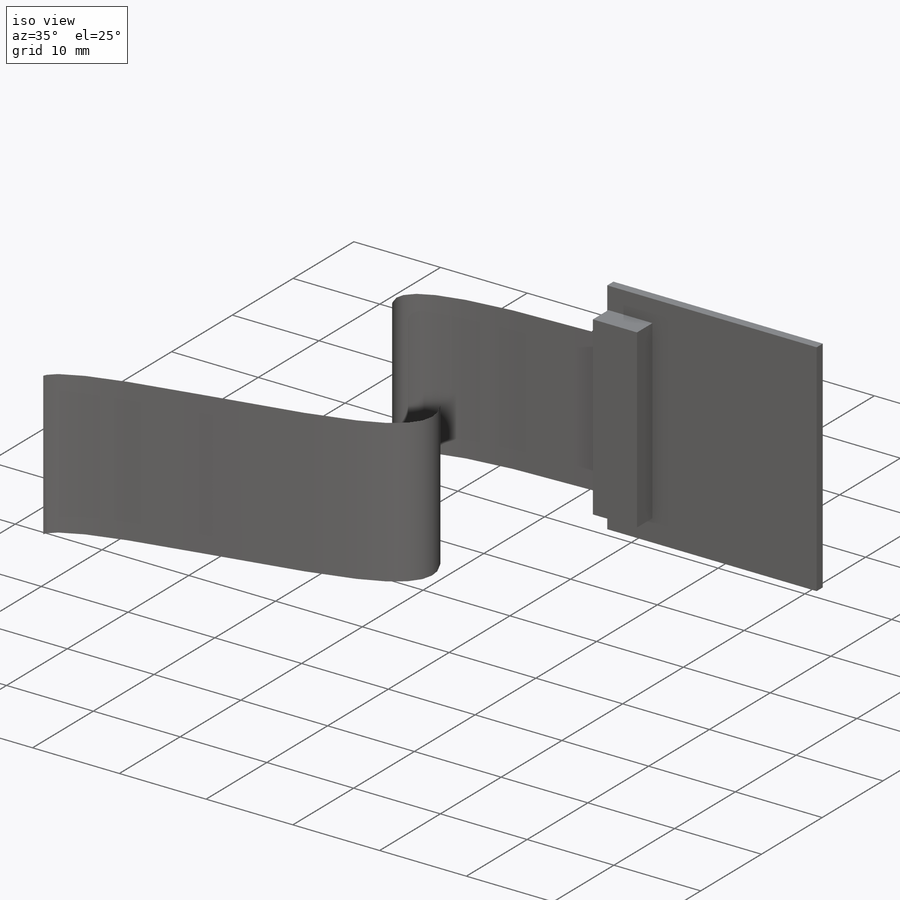
[diagram: iso view]
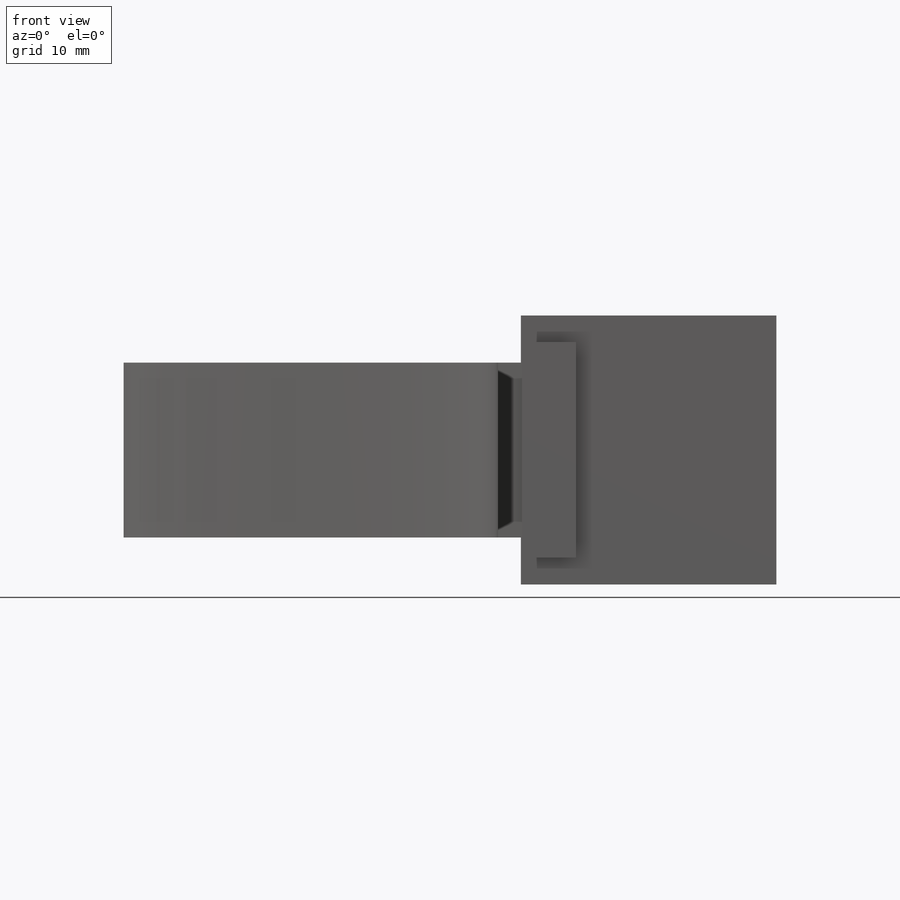
[diagram: front view]
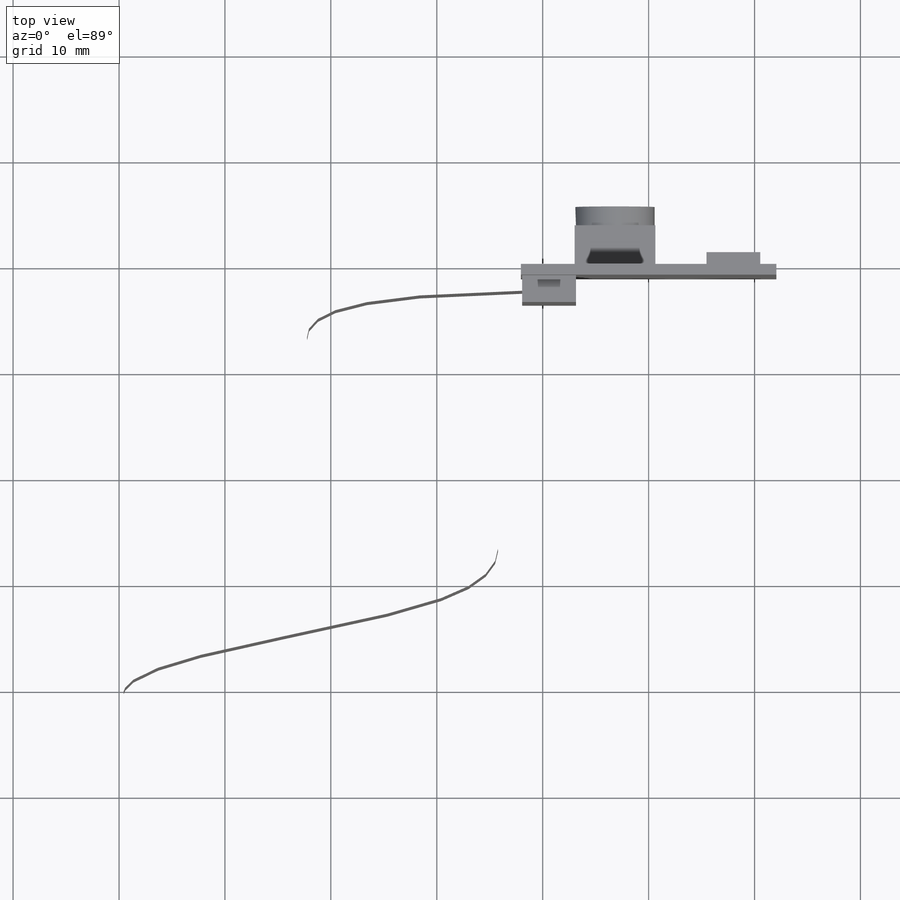
[diagram: top view]
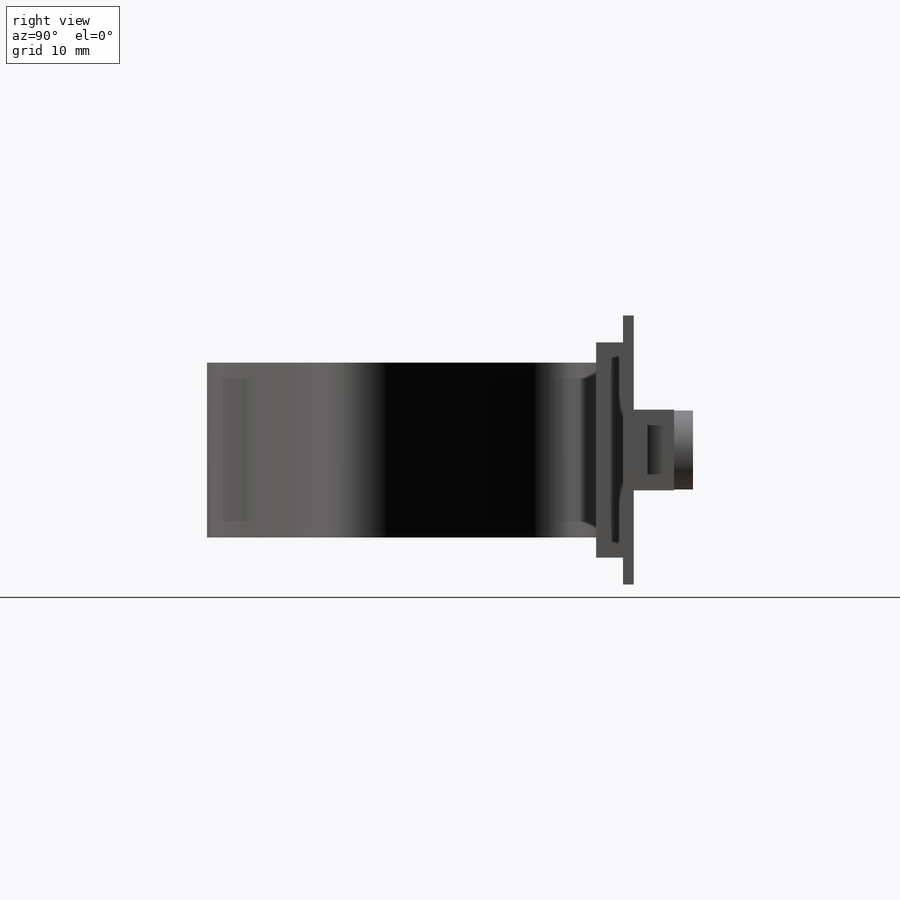
[diagram: right view]
SOLIDWORKS PART (.sldprt)
format: sldprt  version: not decoded by parser v0  size: 239,104 bytes
history: native  units: mm
features: sketch x8, extrude x5, surface_op x2, material x1 (+11 scaffold rows collapsed)
feature tree (27):
  scaffold x11  (default folders/planes/origin — collapsed)
  material  "Material <not specified>"
  sketch  "Sketch1"  dims[D1=24.13mm D2=25.4mm]
  extrude  "Boss-Extrude1"  Depth=1.016mm
  sketch  "Sketch2"  dims[D1=20.32mm D2=5.08mm D3=0.127mm]
  extrude  "Boss-Extrude2"  Depth=2.54mm
  sketch  "Sketch3"  dims[D1=7.62mm D2=7.62mm D3=5.08mm D4=8.89mm]
  extrude  "Boss-Extrude3"  Depth=3.81mm
  sketch  "Sketch5"  dims[D1=7.493mm D2=3.81mm D3=3.81mm]
  extrude  "Boss-Extrude4"  Depth=1.778mm
  sketch  "Sketch6"  dims[D1=1.524mm D2=5.08mm D3=7.62mm D4=0.0mm]
  extrude  "Boss-Extrude5"  Depth=1.27mm
  sketch  "Sketch7"  dims[D1=16.51mm D2=8.255mm]
  sketch  "3DSketch1"
  surface_op  "Surface-Extrude1"
  sketch  "Sketch8"  dims[D1=1.905mm D2=1.905mm]
  surface_op  "Surface-Extrude2"
decode coverage: 12 of 15 modeling features carry decoded parameters
note: suppression state not decoded; provenance and decode notes live in map.json
